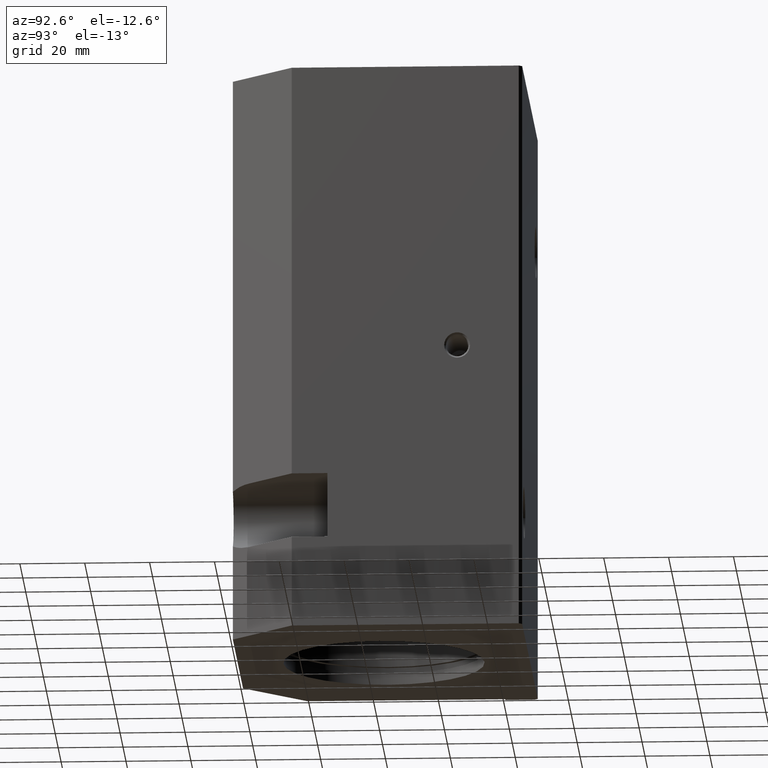
[diagram: clean part render]
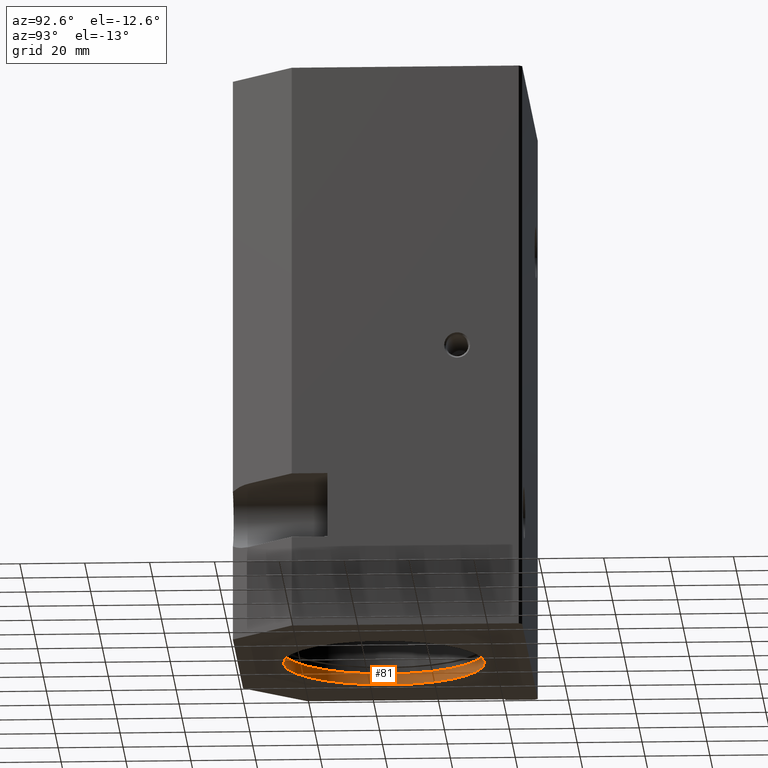
[diagram: same view with one face highlighted and labeled with its STEP entity id]
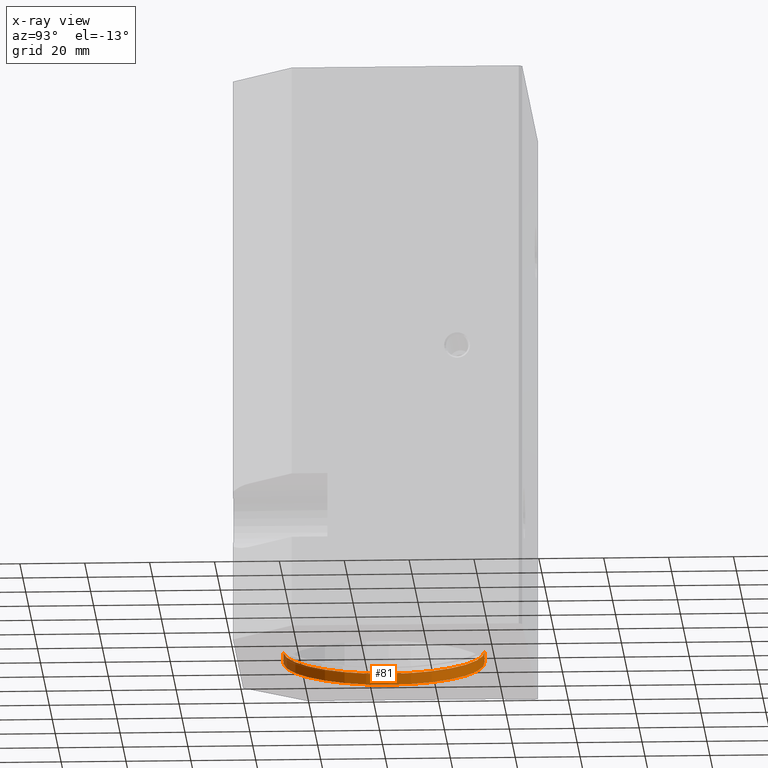
[diagram: x-ray of the same camera — body ghosted, the highlighted face saturated]
A machine part, auxiliary view. The second image highlights one B-rep face of the part: STEP entity #81.
The next image is the same camera in x-ray: the body ghosted, the highlighted face saturated — about 0% of this face is hidden behind the body in this view.
In plain terms, the highlighted cylindrical surface (partial cylindrical patch) has radius 31 mm, axis along (-0, -0, -1).
Its self-contained STEP definition (entity closure, byte-faithful):
#81 = ADVANCED_FACE( '', ( #151 ), #152, .F. );
#151 = FACE_OUTER_BOUND( '', #294, .T. );
#152 = CYLINDRICAL_SURFACE( '', #295, 31.0000000000000 );
#294 = EDGE_LOOP( '', ( #467, #468, #469, #470 ) );
#295 = AXIS2_PLACEMENT_3D( '', #471, #472, #473 );
#467 = ORIENTED_EDGE( '', *, *, #938, .F. );
#468 = ORIENTED_EDGE( '', *, *, #939, .T. );
#469 = ORIENTED_EDGE( '', *, *, #940, .F. );
#470 = ORIENTED_EDGE( '', *, *, #941, .F. );
#471 = CARTESIAN_POINT( '', ( 0.000000000000000, 45.0000000000000, 1.72499999999999 ) );
#472 = DIRECTION( '', ( -0.000000000000000, -0.000000000000000, -1.00000000000000 ) );
#473 = DIRECTION( '', ( -2.44921270764460E-016, 1.00000000000000, 0.000000000000000 ) );
#938 = EDGE_CURVE( '', #1112, #1113, #1114, .T. );
#939 = EDGE_CURVE( '', #1112, #1115, #1116, .T. );
#940 = EDGE_CURVE( '', #1117, #1115, #1118, .T. );
#941 = EDGE_CURVE( '', #1113, #1117, #1119, .T. );
#1112 = VERTEX_POINT( '', #1372 );
#1113 = VERTEX_POINT( '', #1373 );
#1114 = LINE( '', #1374, #1375 );
#1115 = VERTEX_POINT( '', #1376 );
#1116 = CIRCLE( '', #1377, 31.0000000000000 );
#1117 = VERTEX_POINT( '', #1378 );
#1118 = LINE( '', #1379, #1380 );
#1119 = CIRCLE( '', #1381, 31.0000000000000 );
#1372 = CARTESIAN_POINT( '', ( -7.59255939369874E-015, 76.0000000000000, 3.45000000000000 ) );
#1373 = CARTESIAN_POINT( '', ( -7.59255939369874E-015, 76.0000000000000, 0.000000000000000 ) );
#1374 = CARTESIAN_POINT( '', ( -3.79627969684888E-015, 76.0000000000000, 1.72499999999999 ) );
#1375 = VECTOR( '', #1742, 1.00000000000000 );
#1376 = CARTESIAN_POINT( '', ( 3.79627969684888E-015, 14.0000000000000, 3.44999999999999 ) );
#1377 = AXIS2_PLACEMENT_3D( '', #1743, #1744, #1745 );
#1378 = CARTESIAN_POINT( '', ( 3.79627969684888E-015, 14.0000000000000, 0.000000000000000 ) );
#1379 = CARTESIAN_POINT( '', ( 3.79627969684888E-015, 14.0000000000000, 1.72499999999999 ) );
#1380 = VECTOR( '', #1746, 1.00000000000000 );
#1381 = AXIS2_PLACEMENT_3D( '', #1747, #1748, #1749 );
#1742 = DIRECTION( '', ( 0.000000000000000, -0.000000000000000, -1.00000000000000 ) );
#1743 = CARTESIAN_POINT( '', ( 0.000000000000000, 45.0000000000000, 3.44999999999999 ) );
#1744 = DIRECTION( '', ( 0.000000000000000, 0.000000000000000, 1.00000000000000 ) );
#1745 = DIRECTION( '', ( -2.44921270764460E-016, 1.00000000000000, 0.000000000000000 ) );
#1746 = DIRECTION( '', ( 0.000000000000000, -0.000000000000000, 1.00000000000000 ) );
#1747 = CARTESIAN_POINT( '', ( 0.000000000000000, 45.0000000000000, 0.000000000000000 ) );
#1748 = DIRECTION( '', ( 0.000000000000000, 0.000000000000000, 1.00000000000000 ) );
#1749 = DIRECTION( '', ( -2.44921270764460E-016, 1.00000000000000, 0.000000000000000 ) );